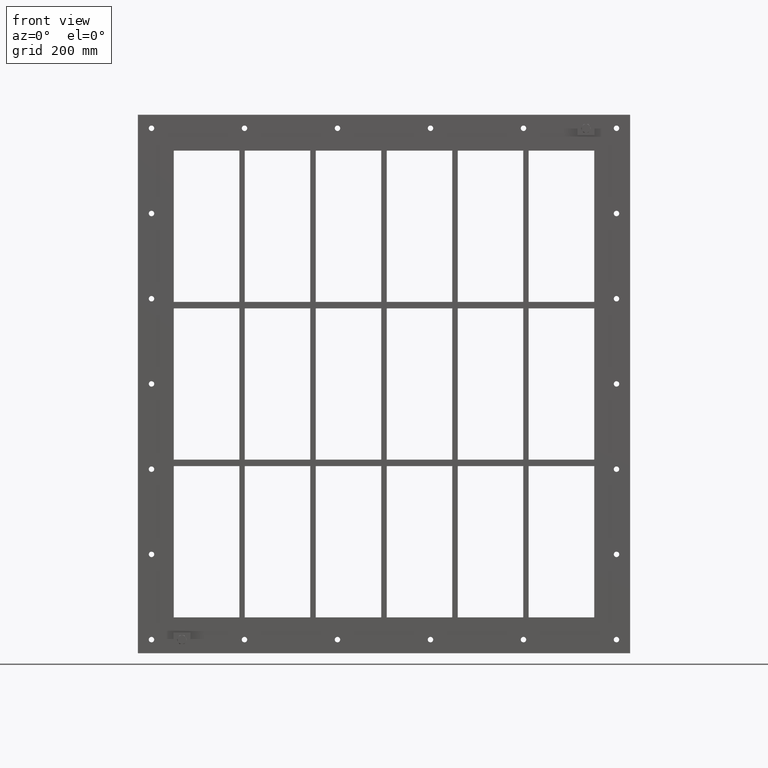
[diagram: clean part render]
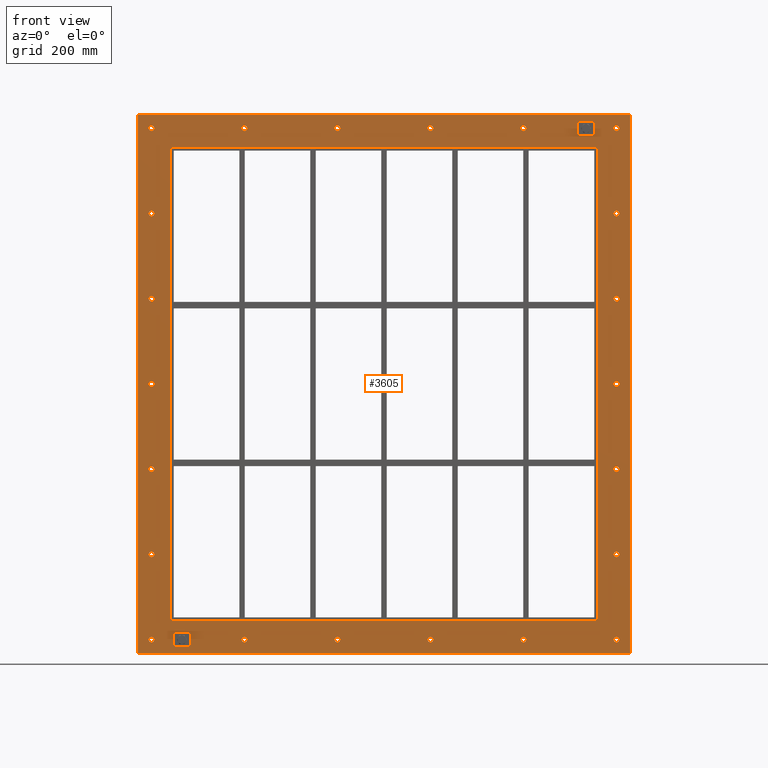
[diagram: same view with one face highlighted and labeled with its STEP entity id]
A machine part, front view. The second image highlights one B-rep face of the part: STEP entity #3605.
In plain terms, the highlighted planar face has unit normal (0, 1, 0).
Its self-contained STEP definition (entity closure, byte-faithful):
#84=CARTESIAN_POINT('',(-422.50000000000028,0.0,-470.00000000000006));
#85=VERTEX_POINT('',#84);
#86=CARTESIAN_POINT('',(-427.50000000000028,0.0,-470.00000000000006));
#87=DIRECTION('',(0.0,1.0,0.0));
#88=DIRECTION('',(1.0,0.0,0.0));
#89=AXIS2_PLACEMENT_3D('',#86,#87,#88);
#90=CIRCLE('',#89,5.0);
#91=EDGE_CURVE('',#85,#85,#90,.T.);
#112=CARTESIAN_POINT('',(432.49999999999972,0.0,-313.30000000000007));
#113=VERTEX_POINT('',#112);
#114=CARTESIAN_POINT('',(427.49999999999972,0.0,-313.30000000000007));
#115=DIRECTION('',(0.0,1.0,0.0));
#116=DIRECTION('',(1.0,0.0,0.0));
#117=AXIS2_PLACEMENT_3D('',#114,#115,#116);
#118=CIRCLE('',#117,5.0);
#119=EDGE_CURVE('',#113,#113,#118,.T.);
#140=CARTESIAN_POINT('',(-422.50000000000028,0.0,-313.30000000000007));
#141=VERTEX_POINT('',#140);
#142=CARTESIAN_POINT('',(-427.50000000000028,0.0,-313.30000000000007));
#143=DIRECTION('',(0.0,1.0,0.0));
#144=DIRECTION('',(1.0,0.0,0.0));
#145=AXIS2_PLACEMENT_3D('',#142,#143,#144);
#146=CIRCLE('',#145,5.0);
#147=EDGE_CURVE('',#141,#141,#146,.T.);
#168=CARTESIAN_POINT('',(432.49999999999972,0.0,-156.60000000000008));
#169=VERTEX_POINT('',#168);
#170=CARTESIAN_POINT('',(427.49999999999972,0.0,-156.60000000000008));
#171=DIRECTION('',(0.0,1.0,0.0));
#172=DIRECTION('',(1.0,0.0,0.0));
#173=AXIS2_PLACEMENT_3D('',#170,#171,#172);
#174=CIRCLE('',#173,5.0);
#175=EDGE_CURVE('',#169,#169,#174,.T.);
#196=CARTESIAN_POINT('',(-422.50000000000028,0.0,-156.60000000000008));
#197=VERTEX_POINT('',#196);
#198=CARTESIAN_POINT('',(-427.50000000000028,0.0,-156.60000000000008));
#199=DIRECTION('',(0.0,1.0,0.0));
#200=DIRECTION('',(1.0,0.0,0.0));
#201=AXIS2_PLACEMENT_3D('',#198,#199,#200);
#202=CIRCLE('',#201,5.0);
#203=EDGE_CURVE('',#197,#197,#202,.T.);
#224=CARTESIAN_POINT('',(432.49999999999972,0.0,0.099999999999927));
#225=VERTEX_POINT('',#224);
#226=CARTESIAN_POINT('',(427.49999999999972,0.0,0.099999999999927));
#227=DIRECTION('',(0.0,1.0,0.0));
#228=DIRECTION('',(1.0,0.0,0.0));
#229=AXIS2_PLACEMENT_3D('',#226,#227,#228);
#230=CIRCLE('',#229,5.0);
#231=EDGE_CURVE('',#225,#225,#230,.T.);
#252=CARTESIAN_POINT('',(-422.50000000000028,0.0,0.099999999999927));
#253=VERTEX_POINT('',#252);
#254=CARTESIAN_POINT('',(-427.50000000000028,0.0,0.099999999999927));
#255=DIRECTION('',(0.0,1.0,0.0));
#256=DIRECTION('',(1.0,0.0,0.0));
#257=AXIS2_PLACEMENT_3D('',#254,#255,#256);
#258=CIRCLE('',#257,5.0);
#259=EDGE_CURVE('',#253,#253,#258,.T.);
#280=CARTESIAN_POINT('',(432.49999999999972,0.0,156.79999999999987));
#281=VERTEX_POINT('',#280);
#282=CARTESIAN_POINT('',(427.49999999999972,0.0,156.79999999999987));
#283=DIRECTION('',(0.0,1.0,0.0));
#284=DIRECTION('',(1.0,0.0,0.0));
#285=AXIS2_PLACEMENT_3D('',#282,#283,#284);
#286=CIRCLE('',#285,5.0);
#287=EDGE_CURVE('',#281,#281,#286,.T.);
#308=CARTESIAN_POINT('',(-422.50000000000028,0.0,156.79999999999987));
#309=VERTEX_POINT('',#308);
#310=CARTESIAN_POINT('',(-427.50000000000028,0.0,156.79999999999987));
#311=DIRECTION('',(0.0,1.0,0.0));
#312=DIRECTION('',(1.0,0.0,0.0));
#313=AXIS2_PLACEMENT_3D('',#310,#311,#312);
#314=CIRCLE('',#313,5.0);
#315=EDGE_CURVE('',#309,#309,#314,.T.);
#336=CARTESIAN_POINT('',(432.49999999999972,0.0,313.49999999999989));
#337=VERTEX_POINT('',#336);
#338=CARTESIAN_POINT('',(427.49999999999972,0.0,313.49999999999989));
#339=DIRECTION('',(0.0,1.0,0.0));
#340=DIRECTION('',(1.0,0.0,0.0));
#341=AXIS2_PLACEMENT_3D('',#338,#339,#340);
#342=CIRCLE('',#341,5.0);
#343=EDGE_CURVE('',#337,#337,#342,.T.);
#364=CARTESIAN_POINT('',(-422.50000000000028,0.0,313.49999999999989));
#365=VERTEX_POINT('',#364);
#366=CARTESIAN_POINT('',(-427.50000000000028,0.0,313.49999999999989));
#367=DIRECTION('',(0.0,1.0,0.0));
#368=DIRECTION('',(1.0,0.0,0.0));
#369=AXIS2_PLACEMENT_3D('',#366,#367,#368);
#370=CIRCLE('',#369,5.0);
#371=EDGE_CURVE('',#365,#365,#370,.T.);
#392=CARTESIAN_POINT('',(-251.50000000000034,0.0,470.19999999999987));
#393=VERTEX_POINT('',#392);
#394=CARTESIAN_POINT('',(-256.50000000000034,0.0,470.19999999999987));
#395=DIRECTION('',(0.0,1.0,0.0));
#396=DIRECTION('',(1.0,0.0,0.0));
#397=AXIS2_PLACEMENT_3D('',#394,#395,#396);
#398=CIRCLE('',#397,5.0);
#399=EDGE_CURVE('',#393,#393,#398,.T.);
#420=CARTESIAN_POINT('',(-251.50000000000034,0.0,-470.00000000000006));
#421=VERTEX_POINT('',#420);
#422=CARTESIAN_POINT('',(-256.50000000000034,0.0,-470.00000000000006));
#423=DIRECTION('',(0.0,1.0,0.0));
#424=DIRECTION('',(1.0,0.0,0.0));
#425=AXIS2_PLACEMENT_3D('',#422,#423,#424);
#426=CIRCLE('',#425,5.0);
#427=EDGE_CURVE('',#421,#421,#426,.T.);
#448=CARTESIAN_POINT('',(-80.500000000000327,0.0,470.19999999999987));
#449=VERTEX_POINT('',#448);
#450=CARTESIAN_POINT('',(-85.500000000000327,0.0,470.19999999999987));
#451=DIRECTION('',(0.0,1.0,0.0));
#452=DIRECTION('',(1.0,0.0,0.0));
#453=AXIS2_PLACEMENT_3D('',#450,#451,#452);
#454=CIRCLE('',#453,5.0);
#455=EDGE_CURVE('',#449,#449,#454,.T.);
#476=CARTESIAN_POINT('',(-80.500000000000327,0.0,-470.00000000000006));
#477=VERTEX_POINT('',#476);
#478=CARTESIAN_POINT('',(-85.500000000000327,0.0,-470.00000000000006));
#479=DIRECTION('',(0.0,1.0,0.0));
#480=DIRECTION('',(1.0,0.0,0.0));
#481=AXIS2_PLACEMENT_3D('',#478,#479,#480);
#482=CIRCLE('',#481,5.0);
#483=EDGE_CURVE('',#477,#477,#482,.T.);
#504=CARTESIAN_POINT('',(90.499999999999687,0.0,470.19999999999987));
#505=VERTEX_POINT('',#504);
#506=CARTESIAN_POINT('',(85.499999999999687,0.0,470.19999999999987));
#507=DIRECTION('',(0.0,1.0,0.0));
#508=DIRECTION('',(1.0,0.0,0.0));
#509=AXIS2_PLACEMENT_3D('',#506,#507,#508);
#510=CIRCLE('',#509,5.0);
#511=EDGE_CURVE('',#505,#505,#510,.T.);
#532=CARTESIAN_POINT('',(90.499999999999687,0.0,-470.00000000000006));
#533=VERTEX_POINT('',#532);
#534=CARTESIAN_POINT('',(85.499999999999687,0.0,-470.00000000000006));
#535=DIRECTION('',(0.0,1.0,0.0));
#536=DIRECTION('',(1.0,0.0,0.0));
#537=AXIS2_PLACEMENT_3D('',#534,#535,#536);
#538=CIRCLE('',#537,5.0);
#539=EDGE_CURVE('',#533,#533,#538,.T.);
#560=CARTESIAN_POINT('',(261.49999999999972,0.0,470.19999999999987));
#561=VERTEX_POINT('',#560);
#562=CARTESIAN_POINT('',(256.49999999999972,0.0,470.19999999999987));
#563=DIRECTION('',(0.0,1.0,0.0));
#564=DIRECTION('',(1.0,0.0,0.0));
#565=AXIS2_PLACEMENT_3D('',#562,#563,#564);
#566=CIRCLE('',#565,5.0);
#567=EDGE_CURVE('',#561,#561,#566,.T.);
#588=CARTESIAN_POINT('',(261.49999999999972,0.0,-470.00000000000006));
#589=VERTEX_POINT('',#588);
#590=CARTESIAN_POINT('',(256.49999999999972,0.0,-470.00000000000006));
#591=DIRECTION('',(0.0,1.0,0.0));
#592=DIRECTION('',(1.0,0.0,0.0));
#593=AXIS2_PLACEMENT_3D('',#590,#591,#592);
#594=CIRCLE('',#593,5.0);
#595=EDGE_CURVE('',#589,#589,#594,.T.);
#616=CARTESIAN_POINT('',(432.49999999999972,0.0,-470.00000000000006));
#617=VERTEX_POINT('',#616);
#618=CARTESIAN_POINT('',(427.49999999999972,0.0,-470.00000000000006));
#619=DIRECTION('',(0.0,1.0,0.0));
#620=DIRECTION('',(1.0,0.0,0.0));
#621=AXIS2_PLACEMENT_3D('',#618,#619,#620);
#622=CIRCLE('',#621,5.0);
#623=EDGE_CURVE('',#617,#617,#622,.T.);
#644=CARTESIAN_POINT('',(-422.50000000000028,0.0,470.19999999999987));
#645=VERTEX_POINT('',#644);
#646=CARTESIAN_POINT('',(-427.50000000000028,0.0,470.19999999999987));
#647=DIRECTION('',(0.0,1.0,0.0));
#648=DIRECTION('',(1.0,0.0,0.0));
#649=AXIS2_PLACEMENT_3D('',#646,#647,#648);
#650=CIRCLE('',#649,5.0);
#651=EDGE_CURVE('',#645,#645,#650,.T.);
#672=CARTESIAN_POINT('',(432.49999999999972,0.0,470.19999999999987));
#673=VERTEX_POINT('',#672);
#674=CARTESIAN_POINT('',(427.49999999999972,0.0,470.19999999999987));
#675=DIRECTION('',(0.0,1.0,0.0));
#676=DIRECTION('',(1.0,0.0,0.0));
#677=AXIS2_PLACEMENT_3D('',#674,#675,#676);
#678=CIRCLE('',#677,5.0);
#679=EDGE_CURVE('',#673,#673,#678,.T.);
#3430=CARTESIAN_POINT('',(-8.998958E-014,0.0,0.0));
#3431=DIRECTION('',(0.0,1.0,0.0));
#3432=DIRECTION('',(0.0,0.0,1.0));
#3433=AXIS2_PLACEMENT_3D('',#3430,#3431,#3432);
#3434=PLANE('',#3433);
#3435=CARTESIAN_POINT('',(-452.50000000000023,0.0,495.00000000000006));
#3436=VERTEX_POINT('',#3435);
#3437=CARTESIAN_POINT('',(452.50000000000006,0.0,495.00000000000006));
#3438=VERTEX_POINT('',#3437);
#3439=CARTESIAN_POINT('',(-452.50000000000023,0.0,495.00000000000006));
#3440=DIRECTION('',(1.0,0.0,0.0));
#3441=VECTOR('',#3440,905.00000000000023);
#3442=LINE('',#3439,#3441);
#3443=EDGE_CURVE('',#3436,#3438,#3442,.T.);
#3444=ORIENTED_EDGE('',*,*,#3443,.F.);
#3445=CARTESIAN_POINT('',(-452.50000000000023,0.0,-495.00000000000006));
#3446=VERTEX_POINT('',#3445);
#3447=CARTESIAN_POINT('',(-452.50000000000023,0.0,-495.00000000000006));
#3448=DIRECTION('',(0.0,0.0,1.0));
#3449=VECTOR('',#3448,990.00000000000011);
#3450=LINE('',#3447,#3449);
#3451=EDGE_CURVE('',#3446,#3436,#3450,.T.);
#3452=ORIENTED_EDGE('',*,*,#3451,.F.);
#3453=CARTESIAN_POINT('',(452.50000000000006,0.0,-495.00000000000006));
#3454=VERTEX_POINT('',#3453);
#3455=CARTESIAN_POINT('',(452.50000000000006,0.0,-495.00000000000006));
#3456=DIRECTION('',(-1.0,0.0,0.0));
#3457=VECTOR('',#3456,905.00000000000023);
#3458=LINE('',#3455,#3457);
#3459=EDGE_CURVE('',#3454,#3446,#3458,.T.);
#3460=ORIENTED_EDGE('',*,*,#3459,.F.);
#3461=CARTESIAN_POINT('',(452.50000000000006,0.0,495.00000000000006));
#3462=DIRECTION('',(0.0,0.0,-1.0));
#3463=VECTOR('',#3462,990.00000000000011);
#3464=LINE('',#3461,#3463);
#3465=EDGE_CURVE('',#3438,#3454,#3464,.T.);
#3466=ORIENTED_EDGE('',*,*,#3465,.F.);
#3467=EDGE_LOOP('',(#3444,#3452,#3460,#3466));
#3468=FACE_OUTER_BOUND('',#3467,.T.);
#3469=ORIENTED_EDGE('',*,*,#91,.T.);
#3470=EDGE_LOOP('',(#3469));
#3471=FACE_BOUND('',#3470,.T.);
#3472=ORIENTED_EDGE('',*,*,#119,.T.);
#3473=EDGE_LOOP('',(#3472));
#3474=FACE_BOUND('',#3473,.T.);
#3475=ORIENTED_EDGE('',*,*,#147,.T.);
#3476=EDGE_LOOP('',(#3475));
#3477=FACE_BOUND('',#3476,.T.);
#3478=ORIENTED_EDGE('',*,*,#175,.T.);
#3479=EDGE_LOOP('',(#3478));
#3480=FACE_BOUND('',#3479,.T.);
#3481=ORIENTED_EDGE('',*,*,#203,.T.);
#3482=EDGE_LOOP('',(#3481));
#3483=FACE_BOUND('',#3482,.T.);
#3484=ORIENTED_EDGE('',*,*,#231,.T.);
#3485=EDGE_LOOP('',(#3484));
#3486=FACE_BOUND('',#3485,.T.);
#3487=ORIENTED_EDGE('',*,*,#259,.T.);
#3488=EDGE_LOOP('',(#3487));
#3489=FACE_BOUND('',#3488,.T.);
#3490=ORIENTED_EDGE('',*,*,#287,.T.);
#3491=EDGE_LOOP('',(#3490));
#3492=FACE_BOUND('',#3491,.T.);
#3493=ORIENTED_EDGE('',*,*,#315,.T.);
#3494=EDGE_LOOP('',(#3493));
#3495=FACE_BOUND('',#3494,.T.);
#3496=ORIENTED_EDGE('',*,*,#343,.T.);
#3497=EDGE_LOOP('',(#3496));
#3498=FACE_BOUND('',#3497,.T.);
#3499=ORIENTED_EDGE('',*,*,#371,.T.);
#3500=EDGE_LOOP('',(#3499));
#3501=FACE_BOUND('',#3500,.T.);
#3502=ORIENTED_EDGE('',*,*,#399,.T.);
#3503=EDGE_LOOP('',(#3502));
#3504=FACE_BOUND('',#3503,.T.);
#3505=ORIENTED_EDGE('',*,*,#427,.T.);
#3506=EDGE_LOOP('',(#3505));
#3507=FACE_BOUND('',#3506,.T.);
#3508=ORIENTED_EDGE('',*,*,#455,.T.);
#3509=EDGE_LOOP('',(#3508));
#3510=FACE_BOUND('',#3509,.T.);
#3511=ORIENTED_EDGE('',*,*,#483,.T.);
#3512=EDGE_LOOP('',(#3511));
#3513=FACE_BOUND('',#3512,.T.);
#3514=ORIENTED_EDGE('',*,*,#511,.T.);
#3515=EDGE_LOOP('',(#3514));
#3516=FACE_BOUND('',#3515,.T.);
#3517=ORIENTED_EDGE('',*,*,#539,.T.);
#3518=EDGE_LOOP('',(#3517));
#3519=FACE_BOUND('',#3518,.T.);
#3520=ORIENTED_EDGE('',*,*,#567,.T.);
#3521=EDGE_LOOP('',(#3520));
#3522=FACE_BOUND('',#3521,.T.);
#3523=ORIENTED_EDGE('',*,*,#595,.T.);
#3524=EDGE_LOOP('',(#3523));
#3525=FACE_BOUND('',#3524,.T.);
#3526=ORIENTED_EDGE('',*,*,#623,.T.);
#3527=EDGE_LOOP('',(#3526));
#3528=FACE_BOUND('',#3527,.T.);
#3529=ORIENTED_EDGE('',*,*,#651,.T.);
#3530=EDGE_LOOP('',(#3529));
#3531=FACE_BOUND('',#3530,.T.);
#3532=ORIENTED_EDGE('',*,*,#679,.T.);
#3533=EDGE_LOOP('',(#3532));
#3534=FACE_BOUND('',#3533,.T.);
#3535=CARTESIAN_POINT('',(-390.50000000000006,0.0,435.0));
#3536=VERTEX_POINT('',#3535);
#3537=CARTESIAN_POINT('',(-392.50000000000006,0.0,433.0));
#3538=VERTEX_POINT('',#3537);
#3539=CARTESIAN_POINT('',(-390.50000000000006,0.0,433.0));
#3540=DIRECTION('',(0.0,-1.0,0.0));
#3541=DIRECTION('',(-0.707106781186548,0.0,0.707106781186548));
#3542=AXIS2_PLACEMENT_3D('',#3539,#3540,#3541);
#3543=CIRCLE('',#3542,2.0);
#3544=EDGE_CURVE('',#3536,#3538,#3543,.T.);
#3545=ORIENTED_EDGE('',*,*,#3544,.F.);
#3546=CARTESIAN_POINT('',(390.50000000000011,0.0,435.0));
#3547=VERTEX_POINT('',#3546);
#3548=CARTESIAN_POINT('',(390.50000000000017,0.0,435.0));
#3549=DIRECTION('',(-1.0,0.0,0.0));
#3550=VECTOR('',#3549,781.00000000000023);
#3551=LINE('',#3548,#3550);
#3552=EDGE_CURVE('',#3547,#3536,#3551,.T.);
#3553=ORIENTED_EDGE('',*,*,#3552,.F.);
#3554=CARTESIAN_POINT('',(392.50000000000011,0.0,433.0));
#3555=VERTEX_POINT('',#3554);
#3556=CARTESIAN_POINT('',(390.50000000000011,0.0,433.0));
#3557=DIRECTION('',(0.0,-1.0,0.0));
#3558=DIRECTION('',(0.707106781186548,0.0,0.707106781186548));
#3559=AXIS2_PLACEMENT_3D('',#3556,#3557,#3558);
#3560=CIRCLE('',#3559,2.0);
#3561=EDGE_CURVE('',#3555,#3547,#3560,.T.);
#3562=ORIENTED_EDGE('',*,*,#3561,.F.);
#3563=CARTESIAN_POINT('',(392.50000000000011,0.0,-433.00000000000011));
#3564=VERTEX_POINT('',#3563);
#3565=CARTESIAN_POINT('',(392.50000000000011,0.0,-433.00000000000011));
#3566=DIRECTION('',(0.0,0.0,1.0));
#3567=VECTOR('',#3566,866.00000000000011);
#3568=LINE('',#3565,#3567);
#3569=EDGE_CURVE('',#3564,#3555,#3568,.T.);
#3570=ORIENTED_EDGE('',*,*,#3569,.F.);
#3571=CARTESIAN_POINT('',(390.50000000000011,0.0,-435.00000000000011));
#3572=VERTEX_POINT('',#3571);
#3573=CARTESIAN_POINT('',(390.50000000000011,0.0,-433.00000000000011));
#3574=DIRECTION('',(0.0,-1.0,0.0));
#3575=DIRECTION('',(0.707106781186548,0.0,-0.707106781186548));
#3576=AXIS2_PLACEMENT_3D('',#3573,#3574,#3575);
#3577=CIRCLE('',#3576,2.0);
#3578=EDGE_CURVE('',#3572,#3564,#3577,.T.);
#3579=ORIENTED_EDGE('',*,*,#3578,.F.);
#3580=CARTESIAN_POINT('',(-390.5,0.0,-435.00000000000011));
#3581=VERTEX_POINT('',#3580);
#3582=CARTESIAN_POINT('',(-390.5,0.0,-435.00000000000011));
#3583=DIRECTION('',(1.0,0.0,0.0));
#3584=VECTOR('',#3583,781.00000000000011);
#3585=LINE('',#3582,#3584);
#3586=EDGE_CURVE('',#3581,#3572,#3585,.T.);
#3587=ORIENTED_EDGE('',*,*,#3586,.F.);
#3588=CARTESIAN_POINT('',(-392.50000000000006,0.0,-433.00000000000011));
#3589=VERTEX_POINT('',#3588);
#3590=CARTESIAN_POINT('',(-390.5,0.0,-433.00000000000011));
#3591=DIRECTION('',(0.0,-1.0,0.0));
#3592=DIRECTION('',(-0.707106781186573,0.0,-0.707106781186523));
#3593=AXIS2_PLACEMENT_3D('',#3590,#3591,#3592);
#3594=CIRCLE('',#3593,2.0);
#3595=EDGE_CURVE('',#3589,#3581,#3594,.T.);
#3596=ORIENTED_EDGE('',*,*,#3595,.F.);
#3597=CARTESIAN_POINT('',(-392.50000000000006,0.0,433.00000000000006));
#3598=DIRECTION('',(0.0,0.0,-1.0));
#3599=VECTOR('',#3598,866.00000000000023);
#3600=LINE('',#3597,#3599);
#3601=EDGE_CURVE('',#3538,#3589,#3600,.T.);
#3602=ORIENTED_EDGE('',*,*,#3601,.F.);
#3603=EDGE_LOOP('',(#3545,#3553,#3562,#3570,#3579,#3587,#3596,#3602));
#3604=FACE_BOUND('',#3603,.T.);
#3605=ADVANCED_FACE('',(#3468,#3471,#3474,#3477,#3480,#3483,#3486,#3489,#3492,#3495,#3498,#3501,#3504,#3507,#3510,#3513,#3516,#3519,#3522,#3525,#3528,#3531,#3534,#3604),#3434,.F.);